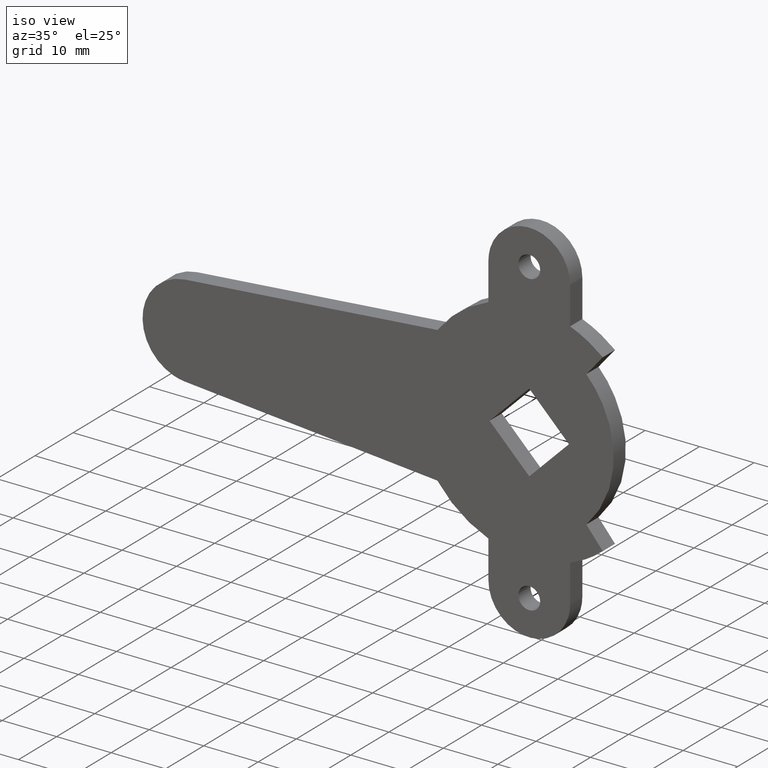
[diagram: clean part render]
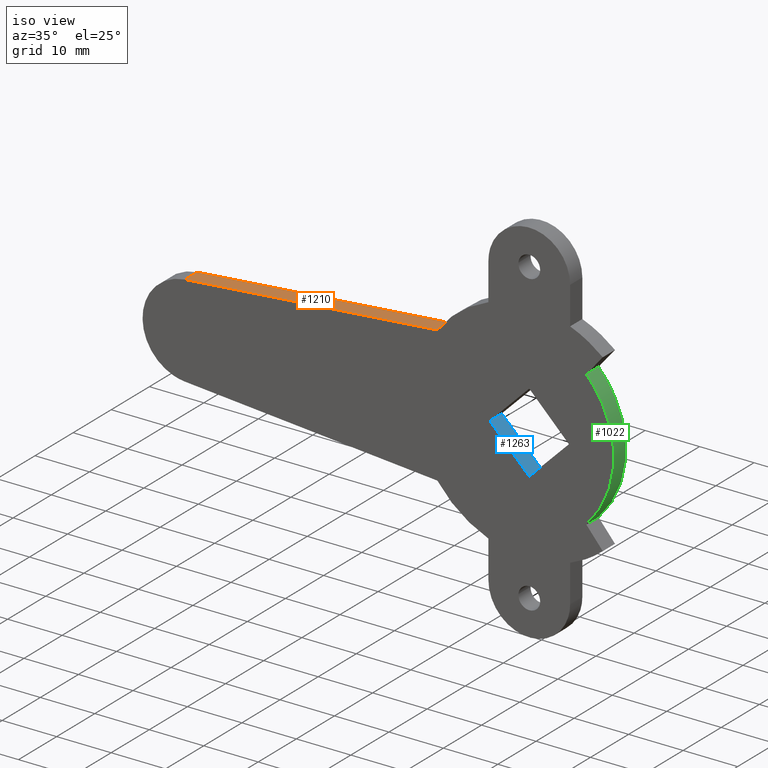
[diagram: same view with three faces highlighted in distinct colors, each labeled with its STEP entity id]
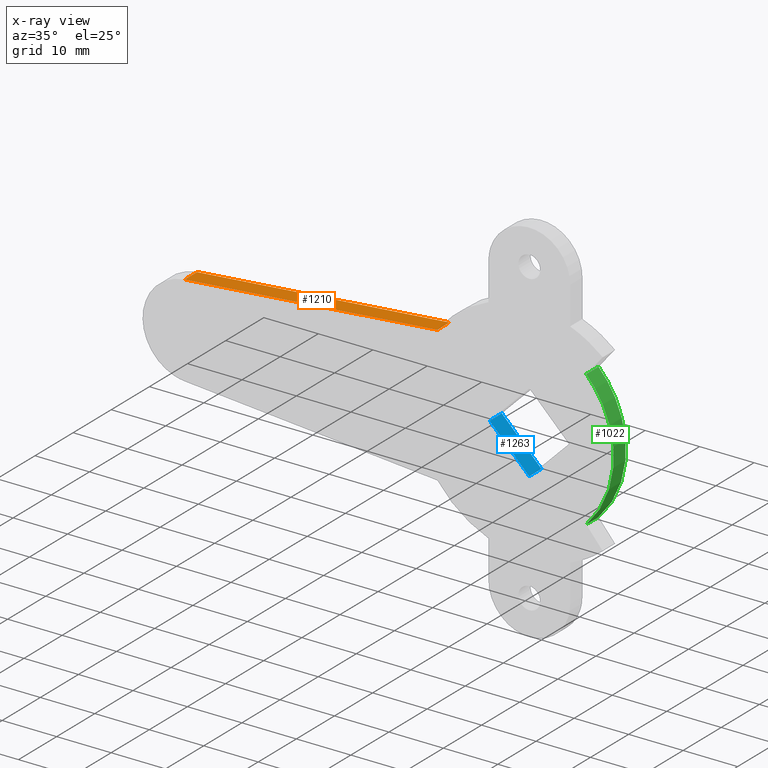
[diagram: x-ray of the same camera — body ghosted, the three highlighted faces saturated]
A machine part, iso view with three faces highlighted in distinct colors.
The next image is the same camera in x-ray (body ghosted, the three faces saturated) — at least one of them is partly hidden behind the body in this view.
Their STEP definitions:

[orange] entity #1210 — the highlighted face is a freeform B-spline surface patch.
#415=CARTESIAN_POINT('',(-16.874539580484502,0.0,12.499996557866019));
#416=VERTEX_POINT('',#415);
#573=CARTESIAN_POINT('',(-63.236600000000003,0.0,8.468099999999890));
#574=VERTEX_POINT('',#573);
#590=CARTESIAN_POINT('',(-16.874539580484502,0.0,12.499996557866019));
#591=CARTESIAN_POINT('',(-63.236600000000003,0.0,8.468099999999890));
#592=QUASI_UNIFORM_CURVE('',1,(#590,#591),.UNSPECIFIED.,.F.,.U.);
#593=EDGE_CURVE('',#416,#574,#592,.T.);
#647=CARTESIAN_POINT('',(-16.874539580484502,-3.199998000000035,12.499996557866019));
#648=VERTEX_POINT('',#647);
#662=CARTESIAN_POINT('',(-63.236600000000003,-3.199998000000035,8.468099999999890));
#663=VERTEX_POINT('',#662);
#664=CARTESIAN_POINT('',(-16.874539580484502,-3.199998000000035,12.499996557866019));
#665=CARTESIAN_POINT('',(-63.236600000000003,-3.199998000000035,8.468099999999890));
#666=QUASI_UNIFORM_CURVE('',1,(#664,#665),.UNSPECIFIED.,.F.,.U.);
#667=EDGE_CURVE('',#648,#663,#666,.T.);
#1187=CARTESIAN_POINT('',(-63.236600000000003,-3.199998000000035,8.468099999999890));
#1188=CARTESIAN_POINT('',(-63.236600000000003,0.0,8.468099999999890));
#1189=QUASI_UNIFORM_CURVE('',1,(#1187,#1188),.UNSPECIFIED.,.F.,.U.);
#1190=EDGE_CURVE('',#663,#574,#1189,.T.);
#1195=CARTESIAN_POINT('',(-14.558755788453920,-3.359837803779946,12.701389693014949));
#1196=CARTESIAN_POINT('',(-65.552382548503232,-3.359837803779946,8.266706972994852));
#1197=CARTESIAN_POINT('',(-14.558755788453920,0.159839975441180,12.701389693014949));
#1198=CARTESIAN_POINT('',(-65.552382548503232,0.159839975441180,8.266706972994852));
#1199=B_SPLINE_SURFACE_WITH_KNOTS('',1,1,((#1195,#1197),(#1196,#1198)),.UNSPECIFIED.,.F.,.F.,.U.,(2,2),(2,2),(0.0,51.186095582398757),(0.0,3.519677779221125),.UNSPECIFIED.);
#1200=ORIENTED_EDGE('',*,*,#593,.T.);
#1201=ORIENTED_EDGE('',*,*,#1190,.F.);
#1202=ORIENTED_EDGE('',*,*,#667,.F.);
#1203=CARTESIAN_POINT('',(-16.874539580484502,-3.199998000000035,12.499996557866019));
#1204=CARTESIAN_POINT('',(-16.874539580484502,0.0,12.499996557866019));
#1205=QUASI_UNIFORM_CURVE('',1,(#1203,#1204),.UNSPECIFIED.,.F.,.U.);
#1206=EDGE_CURVE('',#648,#416,#1205,.T.);
#1207=ORIENTED_EDGE('',*,*,#1206,.T.);
#1208=EDGE_LOOP('',(#1200,#1201,#1202,#1207));
#1209=FACE_OUTER_BOUND('',#1208,.T.);
#1210=ADVANCED_FACE('',(#1209),#1199,.F.);

[blue] entity #1263 — the highlighted face is a freeform B-spline surface patch.
#599=CARTESIAN_POINT('',(0.0,0.0,-7.283200000000110));
#600=VERTEX_POINT('',#599);
#613=CARTESIAN_POINT('',(-7.283200000000000,0.0,0.0));
#614=VERTEX_POINT('',#613);
#620=CARTESIAN_POINT('',(0.0,0.0,-7.283200000000110));
#621=CARTESIAN_POINT('',(-7.283200000000000,0.0,0.0));
#622=QUASI_UNIFORM_CURVE('',1,(#620,#621),.UNSPECIFIED.,.F.,.U.);
#623=EDGE_CURVE('',#600,#614,#622,.T.);
#831=CARTESIAN_POINT('',(0.0,-3.199998000000035,-7.283200000000110));
#832=VERTEX_POINT('',#831);
#838=CARTESIAN_POINT('',(-7.283200000000000,-3.199998000000035,0.0));
#839=VERTEX_POINT('',#838);
#840=CARTESIAN_POINT('',(0.0,-3.199998000000035,-7.283200000000110));
#841=CARTESIAN_POINT('',(-7.283200000000000,-3.199998000000035,0.0));
#842=QUASI_UNIFORM_CURVE('',1,(#840,#841),.UNSPECIFIED.,.F.,.U.);
#843=EDGE_CURVE('',#832,#839,#842,.T.);
#1240=CARTESIAN_POINT('',(-7.283200000000000,-3.199998000000035,0.0));
#1241=CARTESIAN_POINT('',(-7.283200000000000,0.0,0.0));
#1242=QUASI_UNIFORM_CURVE('',1,(#1240,#1241),.UNSPECIFIED.,.F.,.U.);
#1243=EDGE_CURVE('',#839,#614,#1242,.T.);
#1248=CARTESIAN_POINT('',(0.363795731493568,-3.359837803779946,-7.646995731493684));
#1249=CARTESIAN_POINT('',(-7.646995471026038,-3.359837803779946,0.363795471026046));
#1250=CARTESIAN_POINT('',(0.363795731493568,0.159839975441180,-7.646995731493684));
#1251=CARTESIAN_POINT('',(-7.646995471026038,0.159839975441180,0.363795471026046));
#1252=B_SPLINE_SURFACE_WITH_KNOTS('',1,1,((#1248,#1250),(#1249,#1251)),.UNSPECIFIED.,.F.,.F.,.U.,(2,2),(2,2),(0.0,11.328969563942390),(0.0,3.519677779221126),.UNSPECIFIED.);
#1253=ORIENTED_EDGE('',*,*,#623,.T.);
#1254=ORIENTED_EDGE('',*,*,#1243,.F.);
#1255=ORIENTED_EDGE('',*,*,#843,.F.);
#1256=CARTESIAN_POINT('',(0.0,-3.199998000000035,-7.283200000000110));
#1257=CARTESIAN_POINT('',(0.0,0.0,-7.283200000000110));
#1258=QUASI_UNIFORM_CURVE('',1,(#1256,#1257),.UNSPECIFIED.,.F.,.U.);
#1259=EDGE_CURVE('',#832,#600,#1258,.T.);
#1260=ORIENTED_EDGE('',*,*,#1259,.T.);
#1261=EDGE_LOOP('',(#1253,#1254,#1255,#1260));
#1262=FACE_OUTER_BOUND('',#1261,.T.);
#1263=ADVANCED_FACE('',(#1262),#1252,.F.);

[green] entity #1022 — the highlighted face is a freeform B-spline surface patch.
#476=CARTESIAN_POINT('',(10.471549311861420,0.0,12.479539592867400));
#477=VERTEX_POINT('',#476);
#483=CARTESIAN_POINT('',(10.471594131394641,0.0,-12.479493006142739));
#484=VERTEX_POINT('',#483);
#485=CARTESIAN_POINT('',(10.471594131394641,0.0,-12.479493006142750));
#486=CARTESIAN_POINT('',(22.477697919114419,0.0,0.000044853050978));
#487=CARTESIAN_POINT('',(10.471549311861430,0.0,12.479539592867400));
#495=(BOUNDED_CURVE()B_SPLINE_CURVE(2,(#485,#486,#487),.UNSPECIFIED.,.F.,.U.)CURVE()GEOMETRIC_REPRESENTATION_ITEM()QUASI_UNIFORM_CURVE()RATIONAL_B_SPLINE_CURVE((1.0,0.720642873424946,1.0))REPRESENTATION_ITEM(''));
#496=EDGE_CURVE('',#484,#477,#495,.T.);
#754=CARTESIAN_POINT('',(10.471594131394641,-3.199998000000035,-12.479493006142739));
#755=VERTEX_POINT('',#754);
#761=CARTESIAN_POINT('',(10.471549311861420,-3.199998000000035,12.479539592867400));
#762=VERTEX_POINT('',#761);
#763=CARTESIAN_POINT('',(10.471594131394641,-3.199998000000035,-12.479493006142750));
#764=CARTESIAN_POINT('',(22.477697919114419,-3.199998000000035,0.000044853050978));
#765=CARTESIAN_POINT('',(10.471549311861430,-3.199998000000035,12.479539592867400));
#773=(BOUNDED_CURVE()B_SPLINE_CURVE(2,(#763,#764,#765),.UNSPECIFIED.,.F.,.U.)CURVE()GEOMETRIC_REPRESENTATION_ITEM()QUASI_UNIFORM_CURVE()RATIONAL_B_SPLINE_CURVE((1.0,0.720642873424946,1.0))REPRESENTATION_ITEM(''));
#774=EDGE_CURVE('',#755,#762,#773,.T.);
#990=CARTESIAN_POINT('',(10.471549311861420,-3.199998000000035,12.479539592867400));
#991=CARTESIAN_POINT('',(10.471549311861420,0.0,12.479539592867400));
#992=QUASI_UNIFORM_CURVE('',1,(#990,#991),.UNSPECIFIED.,.F.,.U.);
#993=EDGE_CURVE('',#762,#477,#992,.T.);
#998=CARTESIAN_POINT('',(10.140474046728320,-3.279997950000037,-12.814773344620081));
#999=CARTESIAN_POINT('',(10.140474046728320,0.081999948750001,-12.814773344620081));
#1000=CARTESIAN_POINT('',(23.410560309437763,-3.279997950000037,0.274820711450132));
#1001=CARTESIAN_POINT('',(23.410560309437763,0.081999948750001,0.274820711450132));
#1002=CARTESIAN_POINT('',(9.865820748630197,-3.279997950000037,13.080002951557180));
#1003=CARTESIAN_POINT('',(9.865820748630197,0.081999948750001,13.080002951557180));
#1011=(BOUNDED_SURFACE()B_SPLINE_SURFACE(1,2,((#998,#1000,#1002),(#999,#1001,#1003)),.UNSPECIFIED.,.F.,.F.,.U.)B_SPLINE_SURFACE_WITH_KNOTS((2,2),(3,3),(0.0,3.361997898750038),(0.0,30.562186767091511),.UNSPECIFIED.)GEOMETRIC_REPRESENTATION_ITEM()RATIONAL_B_SPLINE_SURFACE(((1.0,0.694658370458997,1.0),(1.0,0.694658370458997,1.0)))REPRESENTATION_ITEM('')SURFACE());
#1012=ORIENTED_EDGE('',*,*,#496,.T.);
#1013=ORIENTED_EDGE('',*,*,#993,.F.);
#1014=ORIENTED_EDGE('',*,*,#774,.F.);
#1015=CARTESIAN_POINT('',(10.471594131394641,-3.199998000000035,-12.479493006142739));
#1016=CARTESIAN_POINT('',(10.471594131394641,0.0,-12.479493006142739));
#1017=QUASI_UNIFORM_CURVE('',1,(#1015,#1016),.UNSPECIFIED.,.F.,.U.);
#1018=EDGE_CURVE('',#755,#484,#1017,.T.);
#1019=ORIENTED_EDGE('',*,*,#1018,.T.);
#1020=EDGE_LOOP('',(#1012,#1013,#1014,#1019));
#1021=FACE_OUTER_BOUND('',#1020,.T.);
#1022=ADVANCED_FACE('',(#1021),#1011,.T.);